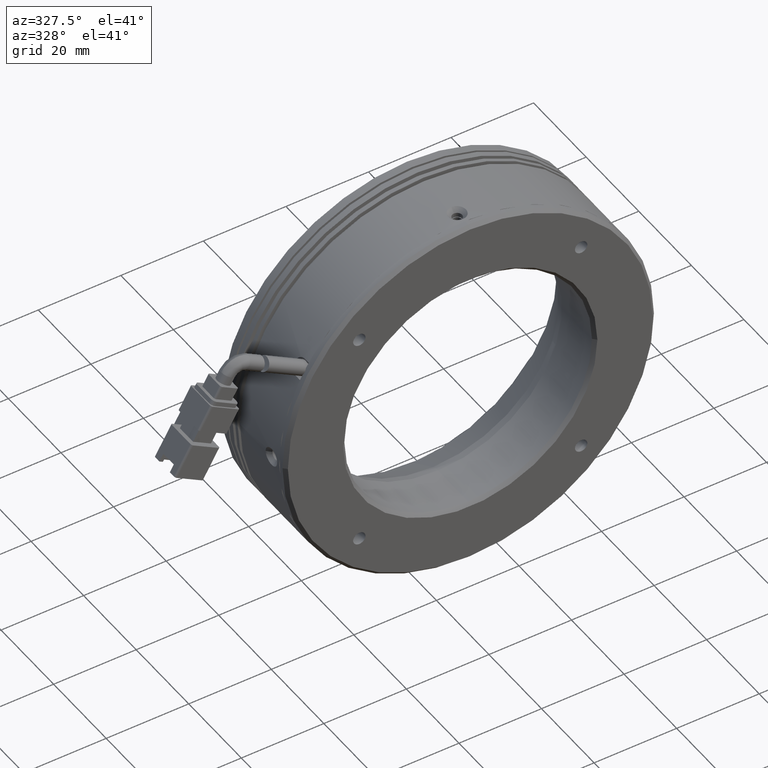
[diagram: clean part render]
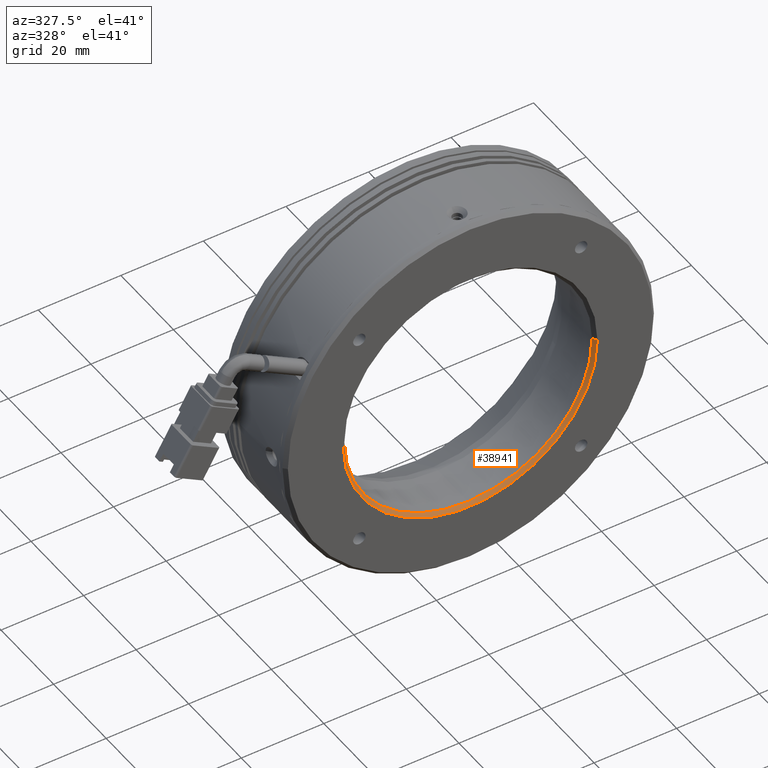
[diagram: same view with one face highlighted and labeled with its STEP entity id]
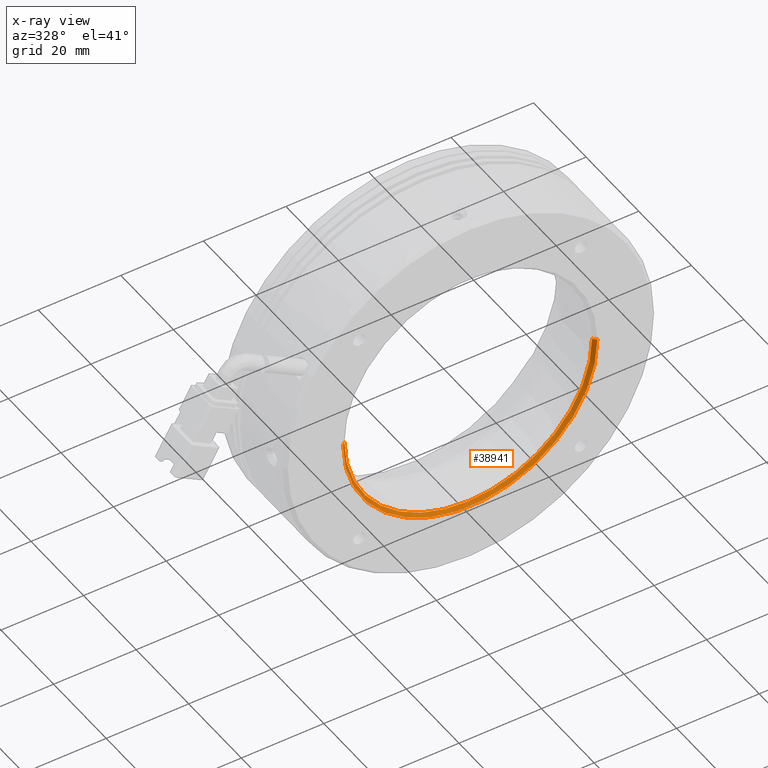
[diagram: x-ray of the same camera — body ghosted, the highlighted face saturated]
A machine part, auxiliary view. The second image highlights one B-rep face of the part: STEP entity #38941.
The next image is the same camera in x-ray: the body ghosted, the highlighted face saturated — about 0% of this face is hidden behind the body in this view.
In plain terms, the highlighted conical surface has half-angle 45 deg.
Its self-contained STEP definition (entity closure, byte-faithful):
#743 = CARTESIAN_POINT ( 'NONE',  ( -39.42332752538288100, 4.973604335538896100, 3.771912141373847600E-015 ) ) ;
#3644 = VERTEX_POINT ( 'NONE', #11063 ) ;
#3649 = AXIS2_PLACEMENT_3D ( 'NONE', #22673, #90287, #32383 ) ;
#4588 = AXIS2_PLACEMENT_3D ( 'NONE', #33691, #101403, #43471 ) ;
#7505 = EDGE_CURVE ( 'NONE', #3644, #119726, #56096, .T. ) ;
#11063 = CARTESIAN_POINT ( 'NONE',  ( 21.37667247461710900, 5.773604335538893300, 0.0000000000000000000 ) ) ;
#15174 = CIRCLE ( 'NONE', #3649, 30.79999999999999700 ) ;
#16720 = CARTESIAN_POINT ( 'NONE',  ( -39.42332752538288100, 4.973604335538896100, 3.771912141373847600E-015 ) ) ;
#22614 = DIRECTION ( 'NONE',  ( 0.0000000000000000000, -1.000000000000000000, 0.0000000000000000000 ) ) ;
#22673 = CARTESIAN_POINT ( 'NONE',  ( -8.623327525382890700, 4.973604335538894400, 0.0000000000000000000 ) ) ;
#23441 = EDGE_CURVE ( 'NONE', #107773, #29044, #42200, .T. ) ;
#23630 = VECTOR ( 'NONE', #113997, 1000.000000000000000 ) ;
#29044 = VERTEX_POINT ( 'NONE', #102236 ) ;
#31602 = DIRECTION ( 'NONE',  ( 0.7071067811865474600, -0.7071067811865475700, 0.0000000000000000000 ) ) ;
#31985 = EDGE_CURVE ( 'NONE', #41648, #119726, #15174, .T. ) ;
#32383 = DIRECTION ( 'NONE',  ( 1.000000000000000000, -5.632219077846777000E-017, 0.0000000000000000000 ) ) ;
#33195 = ORIENTED_EDGE ( 'NONE', *, *, #57486, .F. ) ;
#33691 = CARTESIAN_POINT ( 'NONE',  ( -8.623327525382890700, 5.773604335538893300, 0.0000000000000000000 ) ) ;
#34792 = CONICAL_SURFACE ( 'NONE', #117989, 30.79999999999999700, 0.7853981633974482800 ) ;
#36762 = EDGE_CURVE ( 'NONE', #107773, #41648, #75046, .T. ) ;
#38941 = ADVANCED_FACE ( 'NONE', ( #98386 ), #34792, .F. ) ;
#41648 = VERTEX_POINT ( 'NONE', #743 ) ;
#42200 = CIRCLE ( 'NONE', #4588, 30.00000000000000000 ) ;
#43471 = DIRECTION ( 'NONE',  ( 0.0000000000000000000, 0.0000000000000000000, -1.000000000000000000 ) ) ;
#51887 = ORIENTED_EDGE ( 'NONE', *, *, #23441, .F. ) ;
#54650 = DIRECTION ( 'NONE',  ( -5.632219077846778200E-017, -1.000000000000000000, 0.0000000000000000000 ) ) ;
#56096 = LINE ( 'NONE', #109415, #81811 ) ;
#57486 = EDGE_CURVE ( 'NONE', #29044, #3644, #89300, .T. ) ;
#69167 = AXIS2_PLACEMENT_3D ( 'NONE', #80503, #22614, #90225 ) ;
#74094 = CARTESIAN_POINT ( 'NONE',  ( -8.623327525382890700, 4.973604335538894400, 0.0000000000000000000 ) ) ;
#74441 = ORIENTED_EDGE ( 'NONE', *, *, #7505, .F. ) ;
#75046 = LINE ( 'NONE', #16720, #23630 ) ;
#80503 = CARTESIAN_POINT ( 'NONE',  ( -8.623327525382890700, 5.773604335538893300, 0.0000000000000000000 ) ) ;
#80643 = CARTESIAN_POINT ( 'NONE',  ( 22.17667247461710600, 4.973604335538893500, 0.0000000000000000000 ) ) ;
#81811 = VECTOR ( 'NONE', #31602, 1000.000000000000000 ) ;
#89300 = CIRCLE ( 'NONE', #69167, 30.00000000000000000 ) ;
#90225 = DIRECTION ( 'NONE',  ( 0.0000000000000000000, 0.0000000000000000000, -1.000000000000000000 ) ) ;
#90287 = DIRECTION ( 'NONE',  ( -5.632219077846778200E-017, -1.000000000000000000, 0.0000000000000000000 ) ) ;
#98386 = FACE_OUTER_BOUND ( 'NONE', #118272, .T. ) ;
#101403 = DIRECTION ( 'NONE',  ( 0.0000000000000000000, -1.000000000000000000, 0.0000000000000000000 ) ) ;
#102236 = CARTESIAN_POINT ( 'NONE',  ( -8.623327525382890700, 5.773604335538893300, -30.00000000000000000 ) ) ;
#105379 = ORIENTED_EDGE ( 'NONE', *, *, #36762, .T. ) ;
#107773 = VERTEX_POINT ( 'NONE', #122136 ) ;
#109415 = CARTESIAN_POINT ( 'NONE',  ( 22.17667247461710600, 4.973604335538893500, 0.0000000000000000000 ) ) ;
#110594 = ORIENTED_EDGE ( 'NONE', *, *, #31985, .T. ) ;
#113073 = DIRECTION ( 'NONE',  ( 1.000000000000000000, -5.632219077846777000E-017, 0.0000000000000000000 ) ) ;
#113997 = DIRECTION ( 'NONE',  ( -0.7071067811865474600, -0.7071067811865475700, 8.659560562354931600E-017 ) ) ;
#117989 = AXIS2_PLACEMENT_3D ( 'NONE', #74094, #54650, #113073 ) ;
#118272 = EDGE_LOOP ( 'NONE', ( #51887, #105379, #110594, #74441, #33195 ) ) ;
#119726 = VERTEX_POINT ( 'NONE', #80643 ) ;
#122136 = CARTESIAN_POINT ( 'NONE',  ( -38.62332752538289100, 5.773604335538893300, 3.722926269407954200E-015 ) ) ;